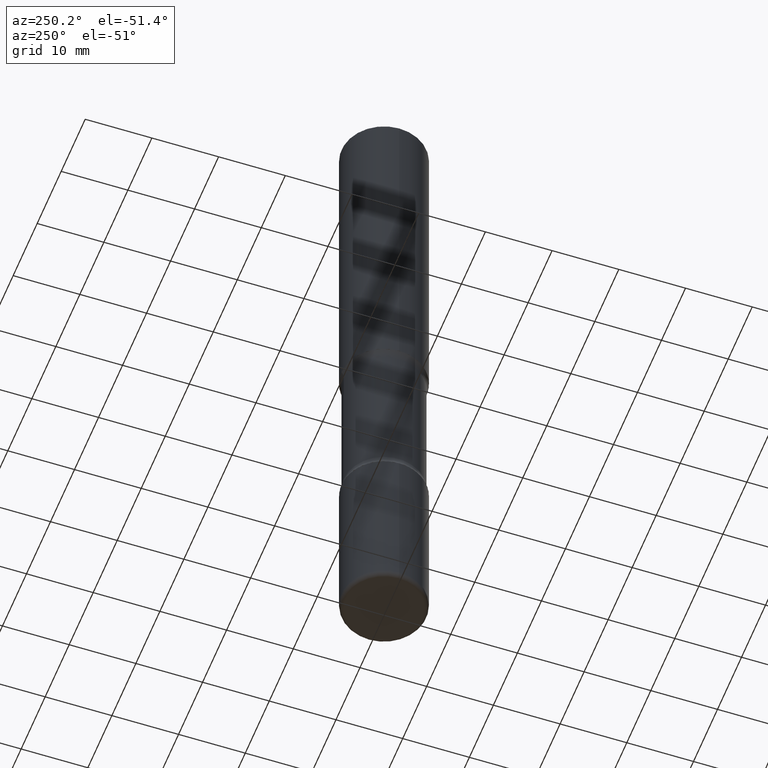
[diagram: clean part render]
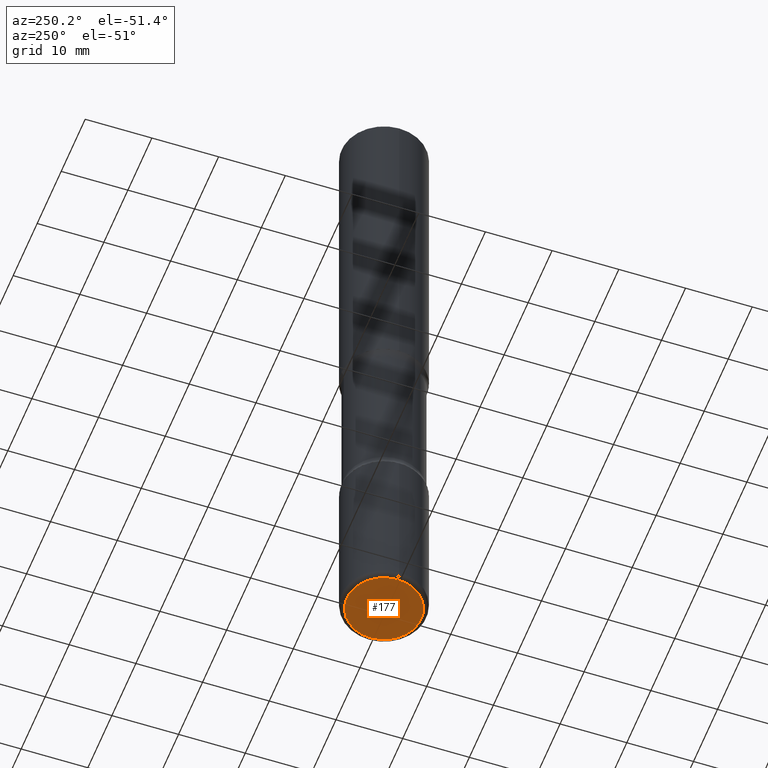
[diagram: same view with one face highlighted and labeled with its STEP entity id]
A machine part, auxiliary view. The second image highlights one B-rep face of the part: STEP entity #177.
In plain terms, the highlighted planar face has unit normal (0, -0, -1).
Its self-contained STEP definition (entity closure, byte-faithful):
#15 = EDGE_CURVE ( 'NONE', #90, #30, #239, .T. ) ;
#20 = PLANE ( 'NONE',  #560 ) ;
#26 = FACE_OUTER_BOUND ( 'NONE', #474, .T. ) ;
#30 = VERTEX_POINT ( 'NONE', #278 ) ;
#32 = CARTESIAN_POINT ( 'NONE',  ( 9.781875224740546387E-29, -1.396592535537258233E-14, -4.000000000000000000 ) ) ;
#74 = DIRECTION ( 'NONE',  ( 1.000000000000000000, -6.982962677686267499E-15, 0.000000000000000000 ) ) ;
#90 = VERTEX_POINT ( 'NONE', #197 ) ;
#177 = ADVANCED_FACE ( 'NONE', ( #26 ), #20, .T. ) ;
#197 = CARTESIAN_POINT ( 'NONE',  ( 0.2200000000000003897, -1.550217714446356385E-14, -4.000000000000000000 ) ) ;
#208 = DIRECTION ( 'NONE',  ( -1.000000000000000000, 6.982962677686265922E-15, -4.876176775795935793E-29 ) ) ;
#239 = CIRCLE ( 'NONE', #490, 0.2200000000000003897 ) ;
#240 = AXIS2_PLACEMENT_3D ( 'NONE', #32, #415, #74 ) ;
#251 = DIRECTION ( 'NONE',  ( 2.438088387897960049E-29, -3.491481338843145188E-15, -1.000000000000000000 ) ) ;
#273 = DIRECTION ( 'NONE',  ( 1.000000000000000000, -6.982962677686267499E-15, 0.000000000000000000 ) ) ;
#278 = CARTESIAN_POINT ( 'NONE',  ( -0.2200000000000003897, -1.224377770625369951E-14, -4.000000000000000000 ) ) ;
#285 = CARTESIAN_POINT ( 'NONE',  ( 9.781875224740546387E-29, -1.396592535537258233E-14, -4.000000000000000000 ) ) ;
#288 = EDGE_CURVE ( 'NONE', #30, #90, #523, .T. ) ;
#403 = CARTESIAN_POINT ( 'NONE',  ( 9.781875224740546387E-29, -1.396592535537258233E-14, -4.000000000000000000 ) ) ;
#406 = DIRECTION ( 'NONE',  ( -2.445468806185136597E-29, 3.491481338843145583E-15, 1.000000000000000000 ) ) ;
#415 = DIRECTION ( 'NONE',  ( -2.445468806185136597E-29, 3.491481338843145583E-15, 1.000000000000000000 ) ) ;
#426 = ORIENTED_EDGE ( 'NONE', *, *, #288, .F. ) ;
#474 = EDGE_LOOP ( 'NONE', ( #545, #426 ) ) ;
#490 = AXIS2_PLACEMENT_3D ( 'NONE', #403, #406, #273 ) ;
#523 = CIRCLE ( 'NONE', #240, 0.2200000000000003897 ) ;
#545 = ORIENTED_EDGE ( 'NONE', *, *, #15, .F. ) ;
#560 = AXIS2_PLACEMENT_3D ( 'NONE', #285, #251, #208 ) ;